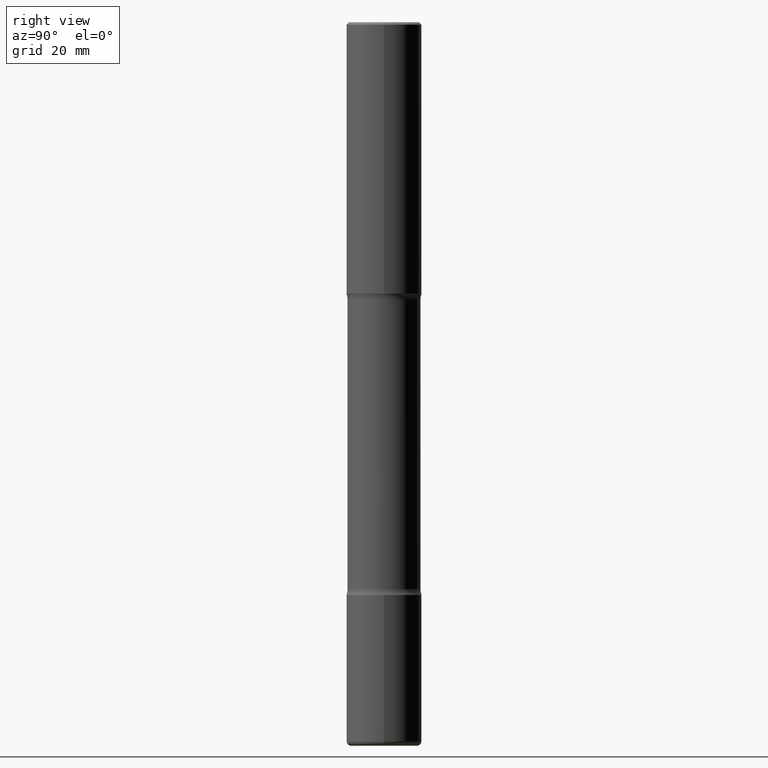
[diagram: clean part render]
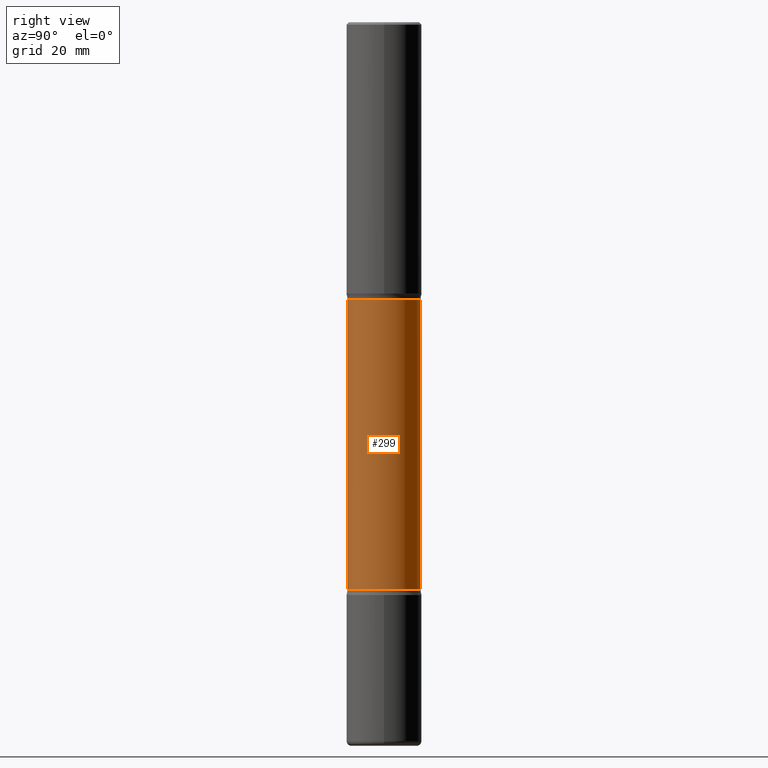
[diagram: same view with one face highlighted and labeled with its STEP entity id]
A machine part, right view. The second image highlights one B-rep face of the part: STEP entity #299.
In plain terms, the highlighted cylindrical surface (edge-blend (fillet) strip) has radius 7.6835 mm, axis along (0, -0, -1).
Its self-contained STEP definition (entity closure, byte-faithful):
#3 = VERTEX_POINT ( 'NONE', #541 ) ;
#10 = ORIENTED_EDGE ( 'NONE', *, *, #329, .F. ) ;
#31 = CYLINDRICAL_SURFACE ( 'NONE', #245, 0.3024999999999999911 ) ;
#33 = EDGE_CURVE ( 'NONE', #554, #142, #511, .T. ) ;
#34 = FACE_OUTER_BOUND ( 'NONE', #311, .T. ) ;
#78 = DIRECTION ( 'NONE',  ( 2.521774376508615199E-29, -3.382207419096575054E-15, -1.000000000000000000 ) ) ;
#90 = DIRECTION ( 'NONE',  ( 2.521774376508615199E-29, -3.382207419096575054E-15, -1.000000000000000000 ) ) ;
#108 = AXIS2_PLACEMENT_3D ( 'NONE', #249, #284, #543 ) ;
#116 = CARTESIAN_POINT ( 'NONE',  ( 1.149243562000197056E-28, -1.641884271188409594E-14, -4.701010205144335430 ) ) ;
#142 = VERTEX_POINT ( 'NONE', #210 ) ;
#169 = ORIENTED_EDGE ( 'NONE', *, *, #193, .T. ) ;
#177 = ORIENTED_EDGE ( 'NONE', *, *, #33, .T. ) ;
#193 = EDGE_CURVE ( 'NONE', #316, #554, #426, .T. ) ;
#201 = CARTESIAN_POINT ( 'NONE',  ( -2.109603134314694080E-15, -0.3025000000000083733, -2.298989794855662794 ) ) ;
#210 = CARTESIAN_POINT ( 'NONE',  ( -2.109603134314630577E-15, -0.3025000000000163669, -4.701010205144334542 ) ) ;
#220 = LINE ( 'NONE', #372, #501 ) ;
#245 = AXIS2_PLACEMENT_3D ( 'NONE', #364, #78, #540 ) ;
#247 = EDGE_CURVE ( 'NONE', #3, #142, #303, .T. ) ;
#249 = CARTESIAN_POINT ( 'NONE',  ( 5.435082097485287570E-29, -8.294711459384350047E-15, -2.298989794855664126 ) ) ;
#251 = CARTESIAN_POINT ( 'NONE',  ( 2.112346210000150269E-15, 0.3024999999999917755, -2.298989794855665014 ) ) ;
#269 = AXIS2_PLACEMENT_3D ( 'NONE', #116, #375, #293 ) ;
#284 = DIRECTION ( 'NONE',  ( 2.521774376508615199E-29, -3.382207419096575054E-15, -1.000000000000000000 ) ) ;
#293 = DIRECTION ( 'NONE',  ( 6.982962677686265133E-15, 1.000000000000000000, -3.612360983357704414E-15 ) ) ;
#299 = ADVANCED_FACE ( 'NONE', ( #34 ), #31, .T. ) ;
#303 = CIRCLE ( 'NONE', #269, 0.3024999999999999356 ) ;
#311 = EDGE_LOOP ( 'NONE', ( #169, #177, #347, #10 ) ) ;
#313 = CARTESIAN_POINT ( 'NONE',  ( -2.075300644325739976E-15, -0.3025000000000207523, -5.999999999999998224 ) ) ;
#316 = VERTEX_POINT ( 'NONE', #251 ) ;
#329 = EDGE_CURVE ( 'NONE', #316, #3, #220, .T. ) ;
#347 = ORIENTED_EDGE ( 'NONE', *, *, #247, .F. ) ;
#357 = DIRECTION ( 'NONE',  ( 2.521774376508615199E-29, -3.382207419096575054E-15, -1.000000000000000000 ) ) ;
#364 = CARTESIAN_POINT ( 'NONE',  ( 1.476819480001516468E-28, -2.081229563337565590E-14, -5.999999999999999112 ) ) ;
#372 = CARTESIAN_POINT ( 'NONE',  ( 2.112346210000242960E-15, 0.3024999999999791744, -6.000000000000000888 ) ) ;
#375 = DIRECTION ( 'NONE',  ( 2.521774376508615199E-29, -3.382207419096575054E-15, -1.000000000000000000 ) ) ;
#426 = CIRCLE ( 'NONE', #108, 0.3025000000000000466 ) ;
#467 = VECTOR ( 'NONE', #357, 39.37007874015748143 ) ;
#501 = VECTOR ( 'NONE', #90, 39.37007874015748143 ) ;
#511 = LINE ( 'NONE', #313, #467 ) ;
#540 = DIRECTION ( 'NONE',  ( 6.982962677686265922E-15, 1.000000000000000000, -3.612360983357703625E-15 ) ) ;
#541 = CARTESIAN_POINT ( 'NONE',  ( 2.112346210000209828E-15, 0.3024999999999835043, -4.701010205144336318 ) ) ;
#543 = DIRECTION ( 'NONE',  ( 6.982962677686265922E-15, 1.000000000000000000, -3.612360983357702836E-15 ) ) ;
#554 = VERTEX_POINT ( 'NONE', #201 ) ;